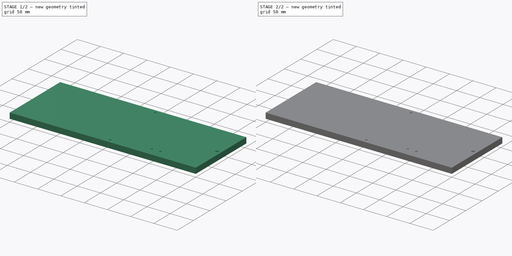
[diagram: build sequence overview — one tinted view per stage of 2, left to right]
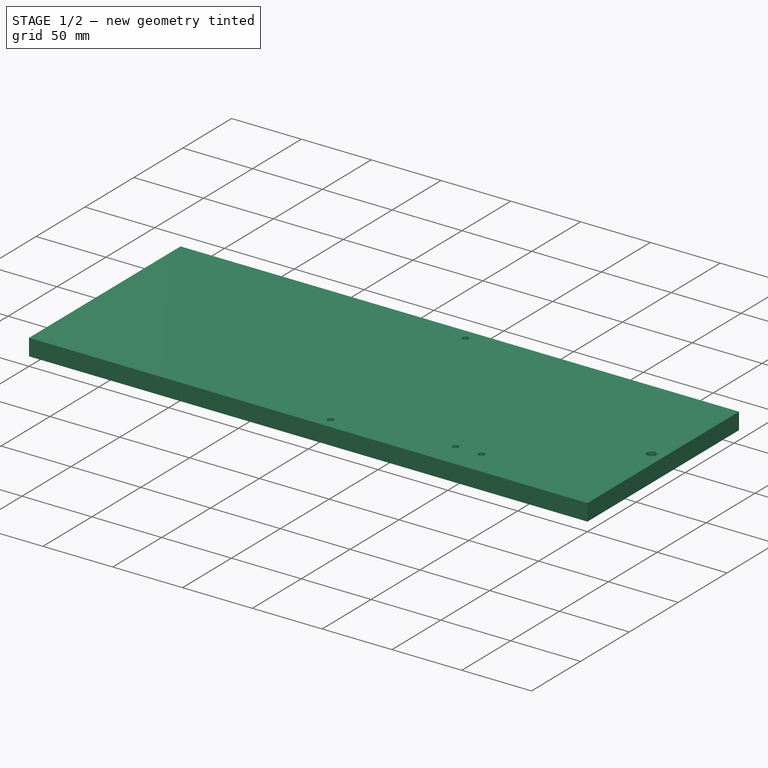
[diagram: stage 1 of 2 — iso view after this stage's code; geometry added in this stage tinted green]
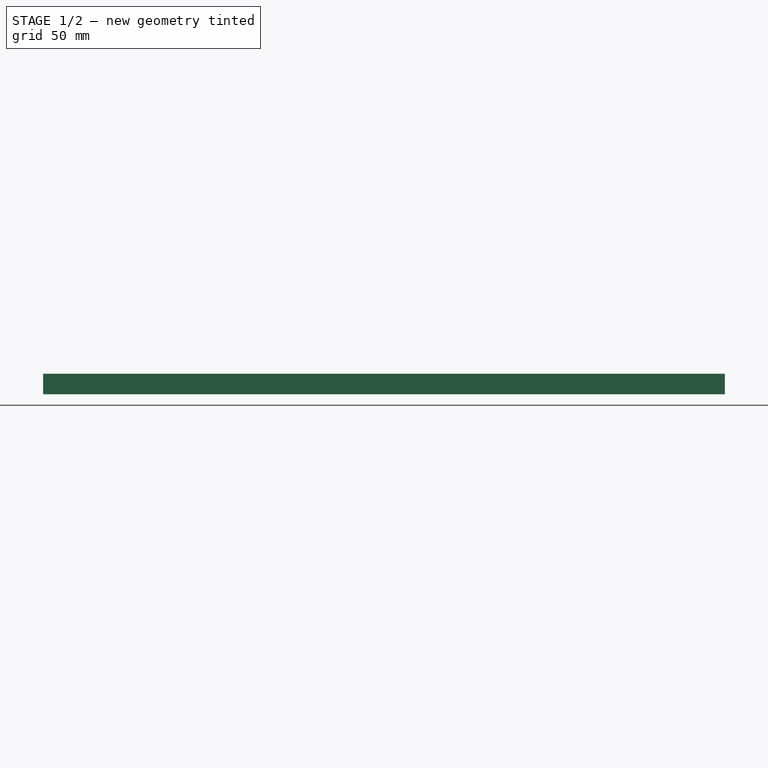
[diagram: stage 1 of 2 — front view after this stage's code; geometry added in this stage tinted green]
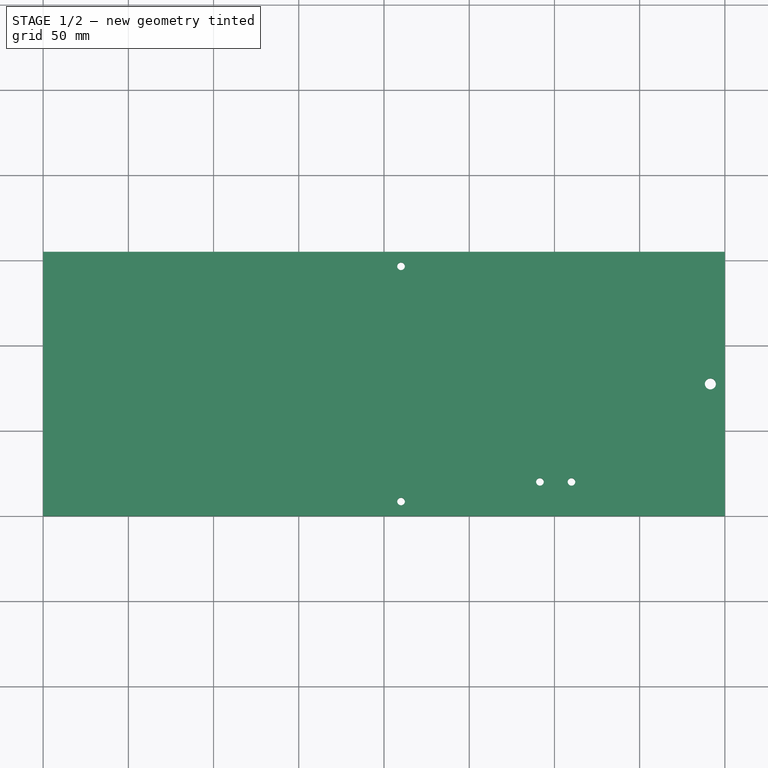
[diagram: stage 1 of 2 — top view after this stage's code; geometry added in this stage tinted green]
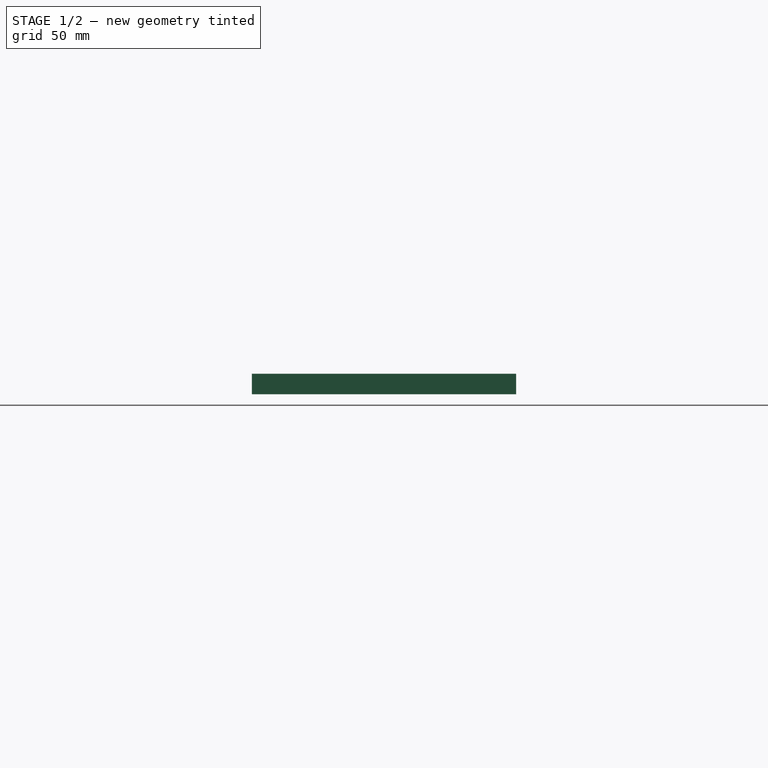
[diagram: stage 1 of 2 — right view after this stage's code; geometry added in this stage tinted green]
FCSTD DOCUMENT  (FreeCAD 1.0R38641 +468 (Git))
Label: BasePlateAFRS
License: All rights reserved
LicenseURL: https://en.wikipedia.org/wiki/All_rights_reserved
objects: Sketcher::SketchObject×3, PartDesign::Pocket×2, PartDesign::Pad×1, PartDesign::Body×1, Part::Box×1
note: 17 computed .brp shape members not serialized (recipe doc carries the construction recipe); baked Part::Feature solids carry a one-line shape summary decoded from their .brp

FEATURE [Sketcher::SketchObject] Sketch
  ArcFitTolerance = 1e-06
  AttachmentSupport = -> [XY_Plane]
  FullyConstrained = true
  MakeInternals = false
  MapMode = 5
  sketch-geometry (17):
    g0: LineSegment StartX=0 StartY=0 StartZ=0 EndX=400 EndY=0 EndZ=0
    g1: LineSegment StartX=400 StartY=0 StartZ=0 EndX=400 EndY=155 EndZ=0
    g2: LineSegment StartX=400 StartY=155 StartZ=0 EndX=0 EndY=155 EndZ=0
    g3: LineSegment StartX=0 StartY=155 StartZ=0 EndX=0 EndY=0 EndZ=0
    g4: Circle CenterX=190 CenterY=8.5 CenterZ=0 NormalX=0 NormalY=0 NormalZ=1 AngleXU=0 Radius=2.25
    g5: Circle CenterX=190 CenterY=146.5 CenterZ=0 NormalX=0 NormalY=0 NormalZ=1 AngleXU=0 Radius=2.25
    g6: Circle CenterX=210 CenterY=8.5 CenterZ=0 NormalX=0 NormalY=0 NormalZ=1 AngleXU=0 Radius=2.25
    g7: Circle CenterX=210 CenterY=146.5 CenterZ=0 NormalX=0 NormalY=0 NormalZ=1 AngleXU=0 Radius=2.25
    g8: Circle CenterX=391.5 CenterY=77.5 CenterZ=0 NormalX=0 NormalY=0 NormalZ=1 AngleXU=0 Radius=3.25
    g9: Circle CenterX=25 CenterY=37.5 CenterZ=0 NormalX=0 NormalY=0 NormalZ=1 AngleXU=0 Radius=2.25
    g10: Circle CenterX=25 CenterY=117.5 CenterZ=0 NormalX=0 NormalY=0 NormalZ=1 AngleXU=0 Radius=2.25
    g11: Circle CenterX=100 CenterY=22.5 CenterZ=0 NormalX=0 NormalY=0 NormalZ=1 AngleXU=0 Radius=2.25
    g12: Circle CenterX=100 CenterY=132.5 CenterZ=0 NormalX=0 NormalY=0 NormalZ=1 AngleXU=0 Radius=2.25
    g13: Circle CenterX=190 CenterY=60.5 CenterZ=0 NormalX=0 NormalY=0 NormalZ=1 AngleXU=0 Radius=2.25
    g14: Circle CenterX=190 CenterY=94.5 CenterZ=0 NormalX=0 NormalY=0 NormalZ=1 AngleXU=0 Radius=2.25
    g15: Circle CenterX=291.5 CenterY=20 CenterZ=0 NormalX=0 NormalY=0 NormalZ=1 AngleXU=0 Radius=2.25
    g16: Circle CenterX=310 CenterY=20 CenterZ=0 NormalX=0 NormalY=0 NormalZ=1 AngleXU=0 Radius=2.25
  constraints (50):
    c: Coincident(g0,g1)
    c: Coincident(g1,g2)
    c: Coincident(g2,g3)
    c: Coincident(g3,g0)
    c: Horizontal(g0)
    c: Horizontal(g2)
    c: Vertical(g1)
    c: Vertical(g3)
    c: Coincident(g0,g-1)
    c: DistanceX(g2,g2) = 400
    c: DistanceY(g1,g1) = 155
    c: Diameter(g4) = 4.5
    c: Diameter(g5) = 4.5
    c: DistanceY(g5,g1) = 8.5
    c: DistanceX(g0,g4) = 190
    c: DistanceY(g0,g4) = 8.5
    c: DistanceX(g5,g4) = 0
    c: Diameter(g6) = 4.5
    c: DistanceY(g6,g4) = 0
    c: DistanceX(g6,g0) = 190
    c: Diameter(g7) = 4.5
    c: DistanceY(g7,g5) = 0
    c: DistanceX(g6,g7) = 0
    c: Diameter(g8) = 6.5
    c: DistanceX(g8,g0) = 8.5
    c: DistanceY(g0,g8) = 77.5
    c: Diameter(g9) = 4.5
    c: DistanceY(g0,g9) = 37.5
    c: DistanceX(g0,g9) = 25
    c: Diameter(g10) = 4.5
    c: DistanceX(g2,g10) = 25
    c: DistanceY(g10,g2) = 37.5
    c: Diameter(g11) = 4.5
    c: DistanceY(g0,g11) = 22.5
    c: Diameter(g12) = 4.5
    c: DistanceX(g0,g11) = 100
    c: DistanceX(g2,g12) = 100
    c: DistanceY(g12,g2) = 22.5
    c: Diameter(g13) = 4.5
    c: Diameter(g14) = 4.5
    c: DistanceY(g0,g13) = 60.5
    c: DistanceY(g14,g2) = 60.5
    c: DistanceX(g0,g13) = 190
    c: DistanceX(g2,g14) = 190
    c: Diameter(g15) = 4.5
    c: DistanceX(g15,g8) = 100
    c: DistanceY(g0,g15) = 20
    c: Diameter(g16) = 4.5
    c: DistanceY(g0,g16) = 20
    c: DistanceX(g16,g0) = 90
FEATURE [PartDesign::Pad] Pad
  Direction = (0,0,1)
  Length = 12
  Length2 = 10
  Profile = -> Sketch
  ReferenceAxis = -> Sketch [N_Axis]
  Refine = true
  Suppressed = false
  Type = 0
FEATURE [PartDesign::Body] Body
  AllowCompound = false
  Group = -> [Sketch,Pad,Sketch001,Pocket,Sketch002,Pocket001]
  Origin = -> Origin
  Tip = -> Pocket001
FEATURE [Part::Box] Box  label="Cube"
  AttacherType = Attacher::AttachEngine3D
  Height = 12
  Length = 200
  Width = 155
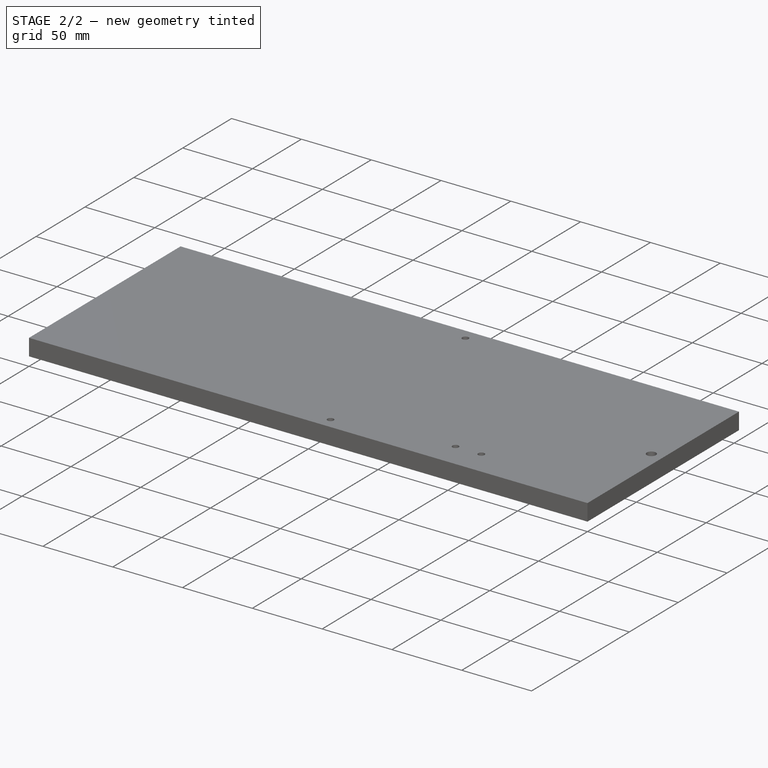
[diagram: stage 2 of 2 — iso view after this stage's code; geometry added in this stage tinted green]
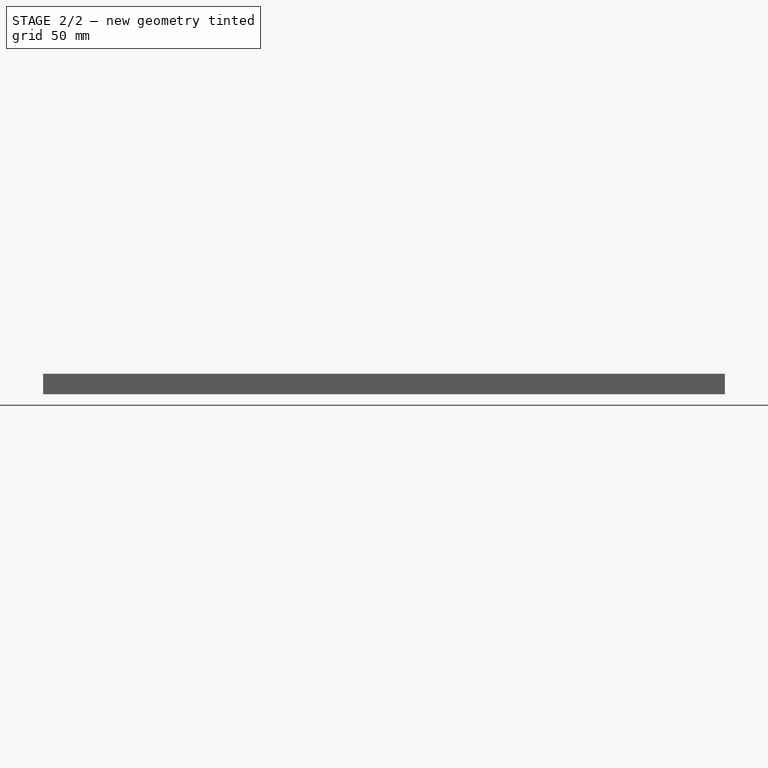
[diagram: stage 2 of 2 — front view after this stage's code; geometry added in this stage tinted green]
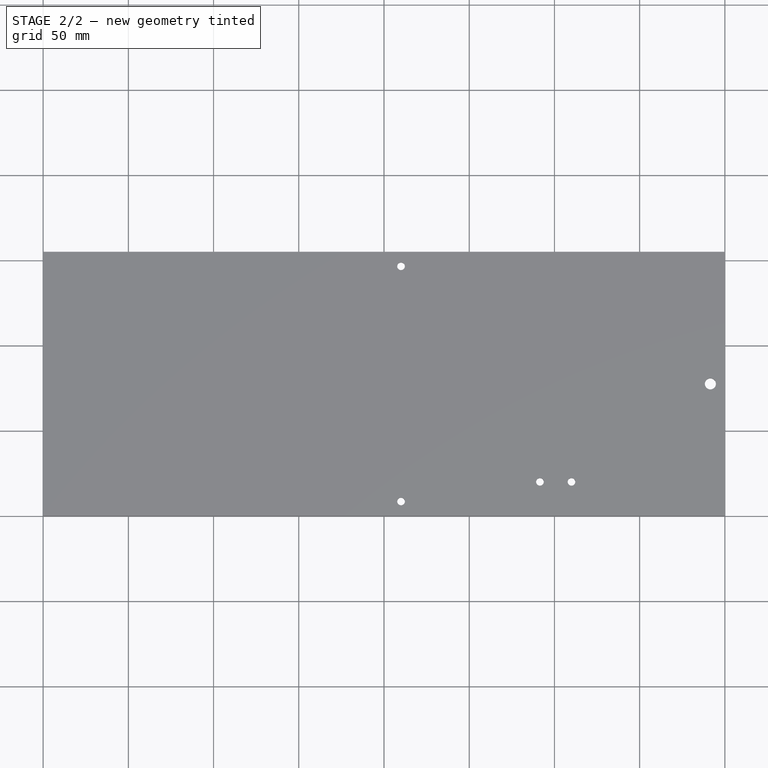
[diagram: stage 2 of 2 — top view after this stage's code; geometry added in this stage tinted green]
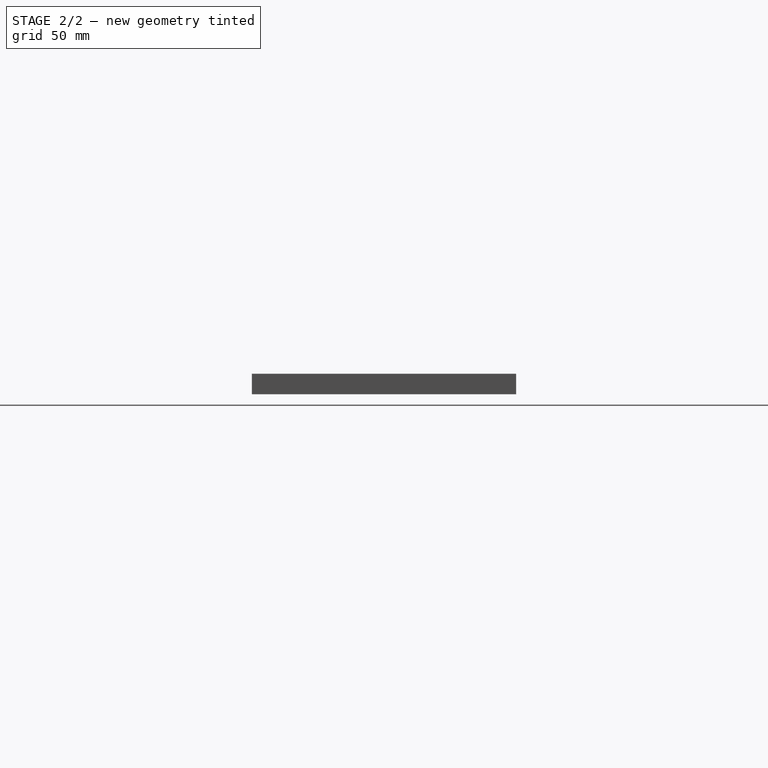
[diagram: stage 2 of 2 — right view after this stage's code; geometry added in this stage tinted green]
FEATURE [Sketcher::SketchObject] Sketch001
  ArcFitTolerance = 1e-06
  AttachmentSupport = -> [Pad]
  FullyConstrained = true
  MakeInternals = false
  MapMode = 5
  Placement = pos=(0,0,0) rot=(1,0,0;3.14159rad)
  sketch-geometry (84):
    g0: LineSegment StartX=29.0415 StartY=-37.5 StartZ=0 EndX=27.0207 EndY=-34 EndZ=0
    g1: LineSegment StartX=27.0207 StartY=-34 StartZ=0 EndX=22.9793 EndY=-34 EndZ=0
    g2: LineSegment StartX=22.9793 StartY=-34 StartZ=0 EndX=20.9585 EndY=-37.5 EndZ=0
    g3: LineSegment StartX=20.9585 StartY=-37.5 StartZ=0 EndX=22.9793 EndY=-41 EndZ=0
    g4: LineSegment StartX=22.9793 StartY=-41 StartZ=0 EndX=27.0207 EndY=-41 EndZ=0
    g5: LineSegment StartX=27.0207 StartY=-41 StartZ=0 EndX=29.0415 EndY=-37.5 EndZ=0
    g6: Circle [constr] CenterX=25 CenterY=-37.5 CenterZ=0 NormalX=0 NormalY=0 NormalZ=1 AngleXU=0 Radius=4.04145
    g7: LineSegment StartX=102.021 StartY=-26 StartZ=0 EndX=104.041 EndY=-22.5 EndZ=0
    g8: LineSegment StartX=104.041 StartY=-22.5 StartZ=0 EndX=102.021 EndY=-19 EndZ=0
    g9: LineSegment StartX=102.021 StartY=-19 StartZ=0 EndX=97.9793 EndY=-19 EndZ=0
    g10: LineSegment StartX=97.9793 StartY=-19 StartZ=0 EndX=95.9585 EndY=-22.5 EndZ=0
    g11: LineSegment StartX=95.9585 StartY=-22.5 StartZ=0 EndX=97.9793 EndY=-26 EndZ=0
    g12: LineSegment StartX=97.9793 StartY=-26 StartZ=0 EndX=102.021 EndY=-26 EndZ=0
    g13: Circle [constr] CenterX=100 CenterY=-22.5 CenterZ=0 NormalX=0 NormalY=0 NormalZ=1 AngleXU=0 Radius=4.04145
    g14: LineSegment StartX=194.041 StartY=-60.5 StartZ=0 EndX=192.021 EndY=-57 EndZ=0
    g15: LineSegment StartX=192.021 StartY=-57 StartZ=0 EndX=187.979 EndY=-57 EndZ=0
    g16: LineSegment StartX=187.979 StartY=-57 StartZ=0 EndX=185.959 EndY=-60.5 EndZ=0
    g17: LineSegment StartX=185.959 StartY=-60.5 StartZ=0 EndX=187.979 EndY=-64 EndZ=0
    g18: LineSegment StartX=187.979 StartY=-64 StartZ=0 EndX=192.021 EndY=-64 EndZ=0
    g19: LineSegment StartX=192.021 StartY=-64 StartZ=0 EndX=194.041 EndY=-60.5 EndZ=0
    g20: Circle [constr] CenterX=190 CenterY=-60.5 CenterZ=0 NormalX=0 NormalY=0 NormalZ=1 AngleXU=0 Radius=4.04145
    g21: LineSegment StartX=27.0207 StartY=-114 StartZ=0 EndX=22.9793 EndY=-114 EndZ=0
    g22: LineSegment StartX=22.9793 StartY=-114 StartZ=0 EndX=20.9585 EndY=-117.5 EndZ=0
    g23: LineSegment StartX=20.9585 StartY=-117.5 StartZ=0 EndX=22.9793 EndY=-121 EndZ=0
    g24: LineSegment StartX=22.9793 StartY=-121 StartZ=0 EndX=27.0207 EndY=-121 EndZ=0
    g25: LineSegment StartX=27.0207 StartY=-121 StartZ=0 EndX=29.0415 EndY=-117.5 EndZ=0
    g26: LineSegment StartX=29.0415 StartY=-117.5 StartZ=0 EndX=27.0207 EndY=-114 EndZ=0
    g27: Circle [constr] CenterX=25 CenterY=-117.5 CenterZ=0 NormalX=0 NormalY=0 NormalZ=1 AngleXU=0 Radius=4.04145
    g28: LineSegment StartX=192.021 StartY=-5 StartZ=0 EndX=187.979 EndY=-5 EndZ=0
    g29: LineSegment StartX=187.979 StartY=-5 StartZ=0 EndX=185.959 EndY=-8.5 EndZ=0
    g30: LineSegment StartX=185.959 StartY=-8.5 StartZ=0 EndX=187.979 EndY=-12 EndZ=0
    g31: LineSegment StartX=187.979 StartY=-12 StartZ=0 EndX=192.021 EndY=-12 EndZ=0
    g32: LineSegment StartX=192.021 StartY=-12 StartZ=0 EndX=194.041 EndY=-8.5 EndZ=0
    g33: LineSegment StartX=194.041 StartY=-8.5 StartZ=0 EndX=192.021 EndY=-5 EndZ=0
    g34: Circle [constr] CenterX=190 CenterY=-8.5 CenterZ=0 NormalX=0 NormalY=0 NormalZ=1 AngleXU=0 Radius=4.04145
    g35: LineSegment StartX=102.021 StartY=-129 StartZ=0 EndX=97.9793 EndY=-129 EndZ=0
    g36: LineSegment StartX=97.9793 StartY=-129 StartZ=0 EndX=95.9585 EndY=-132.5 EndZ=0
    g37: LineSegment StartX=95.9585 StartY=-132.5 StartZ=0 EndX=97.9793 EndY=-136 EndZ=0
    g38: LineSegment StartX=97.9793 StartY=-136 StartZ=0 EndX=102.021 EndY=-136 EndZ=0
    g39: LineSegment StartX=102.021 StartY=-136 StartZ=0 EndX=104.041 EndY=-132.5 EndZ=0
    g40: LineSegment StartX=104.041 StartY=-132.5 StartZ=0 EndX=102.021 EndY=-129 EndZ=0
    g41: Circle [constr] CenterX=100 CenterY=-132.5 CenterZ=0 NormalX=0 NormalY=0 NormalZ=1 AngleXU=0 Radius=4.04145
    g42: LineSegment StartX=192.021 StartY=-91 StartZ=0 EndX=187.979 EndY=-91 EndZ=0
    g43: LineSegment StartX=187.979 StartY=-91 StartZ=0 EndX=185.959 EndY=-94.5 EndZ=0
    g44: LineSegment StartX=185.959 StartY=-94.5 StartZ=0 EndX=187.979 EndY=-98 EndZ=0
    g45: LineSegment StartX=187.979 StartY=-98 StartZ=0 EndX=192.021 EndY=-98 EndZ=0
    g46: LineSegment StartX=192.021 StartY=-98 StartZ=0 EndX=194.041 EndY=-94.5 EndZ=0
    g47: LineSegment StartX=194.041 StartY=-94.5 StartZ=0 EndX=192.021 EndY=-91 EndZ=0
    g48: Circle [constr] CenterX=190 CenterY=-94.5 CenterZ=0 NormalX=0 NormalY=0 NormalZ=1 AngleXU=0 Radius=4.04145
    g49: LineSegment StartX=192.021 StartY=-143 StartZ=0 EndX=187.979 EndY=-143 EndZ=0
    g50: LineSegment StartX=187.979 StartY=-143 StartZ=0 EndX=185.959 EndY=-146.5 EndZ=0
    g51: LineSegment StartX=185.959 StartY=-146.5 StartZ=0 EndX=187.979 EndY=-150 EndZ=0
    g52: LineSegment StartX=187.979 StartY=-150 StartZ=0 EndX=192.021 EndY=-150 EndZ=0
    g53: LineSegment StartX=192.021 StartY=-150 StartZ=0 EndX=194.041 EndY=-146.5 EndZ=0
    g54: LineSegment StartX=194.041 StartY=-146.5 StartZ=0 EndX=192.021 EndY=-143 EndZ=0
    g55: Circle [constr] CenterX=190 CenterY=-146.5 CenterZ=0 NormalX=0 NormalY=0 NormalZ=1 AngleXU=0 Radius=4.04145
    g56: LineSegment StartX=212.021 StartY=-12 StartZ=0 EndX=214.041 EndY=-8.5 EndZ=0
    g57: LineSegment StartX=214.041 StartY=-8.5 StartZ=0 EndX=212.021 EndY=-5 EndZ=0
    g58: LineSegment StartX=212.021 StartY=-5 StartZ=0 EndX=207.979 EndY=-5 EndZ=0
    g59: LineSegment StartX=207.979 StartY=-5 StartZ=0 EndX=205.959 EndY=-8.5 EndZ=0
    g60: LineSegment StartX=205.959 StartY=-8.5 StartZ=0 EndX=207.979 EndY=-12 EndZ=0
    g61: LineSegment StartX=207.979 StartY=-12 StartZ=0 EndX=212.021 EndY=-12 EndZ=0
    g62: Circle [constr] CenterX=210 CenterY=-8.5 CenterZ=0 NormalX=0 NormalY=0 NormalZ=1 AngleXU=0 Radius=4.04145
    g63: LineSegment StartX=212.021 StartY=-143 StartZ=0 EndX=207.979 EndY=-143 EndZ=0
    g64: LineSegment StartX=207.979 StartY=-143 StartZ=0 EndX=205.959 EndY=-146.5 EndZ=0
    g65: LineSegment StartX=205.959 StartY=-146.5 StartZ=0 EndX=207.979 EndY=-150 EndZ=0
    g66: LineSegment StartX=207.979 StartY=-150 StartZ=0 EndX=212.021 EndY=-150 EndZ=0
    g67: LineSegment StartX=212.021 StartY=-150 StartZ=0 EndX=214.041 EndY=-146.5 EndZ=0
    g68: LineSegment StartX=214.041 StartY=-146.5 StartZ=0 EndX=212.021 EndY=-143 EndZ=0
    g69: Circle [constr] CenterX=210 CenterY=-146.5 CenterZ=0 NormalX=0 NormalY=0 NormalZ=1 AngleXU=0 Radius=4.04145
    g70: LineSegment StartX=295.541 StartY=-20 StartZ=0 EndX=293.521 EndY=-16.5 EndZ=0
    g71: LineSegment StartX=293.521 StartY=-16.5 StartZ=0 EndX=289.479 EndY=-16.5 EndZ=0
    g72: LineSegment StartX=289.479 StartY=-16.5 StartZ=0 EndX=287.459 EndY=-20 EndZ=0
    g73: LineSegment StartX=287.459 StartY=-20 StartZ=0 EndX=289.479 EndY=-23.5 EndZ=0
    g74: LineSegment StartX=289.479 StartY=-23.5 StartZ=0 EndX=293.521 EndY=-23.5 EndZ=0
    g75: LineSegment StartX=293.521 StartY=-23.5 StartZ=0 EndX=295.541 EndY=-20 EndZ=0
    g76: Circle [constr] CenterX=291.5 CenterY=-20 CenterZ=0 NormalX=0 NormalY=0 NormalZ=1 AngleXU=0 Radius=4.04145
    g77: LineSegment StartX=312.021 StartY=-16.5 StartZ=0 EndX=307.979 EndY=-16.5 EndZ=0
    g78: LineSegment StartX=307.979 StartY=-16.5 StartZ=0 EndX=305.959 EndY=-20 EndZ=0
    g79: LineSegment StartX=305.959 StartY=-20 StartZ=0 EndX=307.979 EndY=-23.5 EndZ=0
    g80: LineSegment StartX=307.979 StartY=-23.5 StartZ=0 EndX=312.021 EndY=-23.5 EndZ=0
    g81: LineSegment StartX=312.021 StartY=-23.5 StartZ=0 EndX=314.041 EndY=-20 EndZ=0
    g82: LineSegment StartX=314.041 StartY=-20 StartZ=0 EndX=312.021 EndY=-16.5 EndZ=0
    g83: Circle [constr] CenterX=310 CenterY=-20 CenterZ=0 NormalX=0 NormalY=0 NormalZ=1 AngleXU=0 Radius=4.04145
  constraints (204):
    c: Coincident(g0,g1)
    c: Coincident(g1,g2)
    c: Coincident(g2,g3)
    c: Coincident(g3,g4)
    c: Coincident(g4,g5)
    c: Coincident(g5,g0)
    c: Equal(g0, g1-g5) x5
    c: PointOnObject(g0,g6)
    c: PointOnObject(g1,g6)
    c: PointOnObject(g2,g6)
    c: PointOnObject(g3,g6)
    c: PointOnObject(g4,g6)
    c: PointOnObject(g5,g6)
    c: Parallel(g-1,g1)
    c: DistanceY(g6,g-1) = 37.5
    c: DistanceX(g-1,g6) = 25
    c: Coincident(g7,g8)
    c: Coincident(g8,g9)
    c: Coincident(g9,g10)
    c: Coincident(g10,g11)
    c: Coincident(g11,g12)
    c: Coincident(g12,g7)
    c: Equal(g7, g8-g12) x5
    c: PointOnObject(g7,g13)
    c: PointOnObject(g8,g13)
    c: PointOnObject(g9,g13)
    c: PointOnObject(g10,g13)
    c: PointOnObject(g11,g13)
    c: PointOnObject(g12,g13)
    c: Parallel(g9,g-1)
    c: DistanceY(g4,g0) = 7
    c: DistanceY(g7,g8) = 7
    c: DistanceY(g13,g-1) = 22.5
    c: DistanceX(g-1,g13) = 100
    c: Coincident(g14,g15)
    c: Coincident(g15,g16)
    c: Coincident(g16,g17)
    c: Coincident(g17,g18)
    c: Coincident(g18,g19)
    c: Coincident(g19,g14)
    c: Equal(g14, g15-g19) x5
    c: PointOnObject(g14,g20)
    c: PointOnObject(g15,g20)
    c: PointOnObject(g16,g20)
    c: PointOnObject(g17,g20)
    c: PointOnObject(g18,g20)
    c: PointOnObject(g19,g20)
    c: Parallel(g15,g-1)
    c: DistanceY(g18,g14) = 7
    c: DistanceY(g20,g-1) = 60.5
    c: DistanceX(g-1,g20) = 190
    c: Coincident(g21,g22)
    c: Coincident(g22,g23)
    c: Coincident(g23,g24)
    c: Coincident(g24,g25)
    c: Coincident(g25,g26)
    c: Coincident(g26,g21)
    c: Equal(g21, g22-g26) x5
    c: PointOnObject(g21,g27)
    c: PointOnObject(g22,g27)
    c: PointOnObject(g23,g27)
    c: PointOnObject(g24,g27)
    c: PointOnObject(g25,g27)
    c: PointOnObject(g26,g27)
    c: Parallel(g21,g-1)
    c: DistanceX(g-1,g27) = 25
    c: DistanceY(g24,g21) = 7
    c: Coincident(g28,g29)
    c: Coincident(g29,g30)
    c: Coincident(g30,g31)
    c: Coincident(g31,g32)
    c: Coincident(g32,g33)
    c: Coincident(g33,g28)
    c: Equal(g28, g29-g33) x5
    c: PointOnObject(g28,g34)
    c: PointOnObject(g29,g34)
    c: PointOnObject(g30,g34)
    c: PointOnObject(g31,g34)
    c: PointOnObject(g32,g34)
    c: PointOnObject(g33,g34)
    c: Parallel(g28,g-1)
    c: DistanceY(g31,g28) = 7
    c: DistanceY(g34,g-1) = 8.5
    c: DistanceX(g-1,g34) = 190
    c: Coincident(g35,g36)
    c: Coincident(g36,g37)
    c: Coincident(g37,g38)
    c: Coincident(g38,g39)
    c: Coincident(g39,g40)
    c: Coincident(g40,g35)
    c: Equal(g35, g36-g40) x5
    c: PointOnObject(g35,g41)
    c: PointOnObject(g36,g41)
    c: PointOnObject(g37,g41)
    c: PointOnObject(g38,g41)
    c: PointOnObject(g39,g41)
    c: PointOnObject(g40,g41)
    c: Parallel(g35,g-1)
    c: DistanceY(g38,g35) = 7
    c: DistanceX(g-1,g41) = 100
    c: Coincident(g42,g43)
    c: Coincident(g43,g44)
    c: Coincident(g44,g45)
    c: Coincident(g45,g46)
    c: Coincident(g46,g47)
    c: Coincident(g47,g42)
    c: Equal(g42, g43-g47) x5
    c: PointOnObject(g42,g48)
    c: PointOnObject(g43,g48)
    c: PointOnObject(g44,g48)
    c: PointOnObject(g45,g48)
    c: PointOnObject(g46,g48)
    c: PointOnObject(g47,g48)
    c: Parallel(g42,g-1)
    c: DistanceY(g45,g42) = 7
    c: DistanceX(g-1,g48) = 190
    c: Coincident(g49,g50)
    c: Coincident(g50,g51)
    c: Coincident(g51,g52)
    c: Coincident(g52,g53)
    c: Coincident(g53,g54)
    c: Coincident(g54,g49)
    c: Equal(g49, g50-g54) x5
    c: PointOnObject(g49,g55)
    c: PointOnObject(g50,g55)
    c: PointOnObject(g51,g55)
    c: PointOnObject(g52,g55)
    c: PointOnObject(g53,g55)
    c: PointOnObject(g54,g55)
    c: Parallel(g49,g-1)
    c: DistanceY(g52,g49) = 7
    c: DistanceX(g-1,g55) = 190
    c: DistanceY(g27,g-1) = 117.5
    c: DistanceY(g41,g-1) = 132.5
    c: DistanceY(g48,g-1) = 94.5
    c: DistanceY(g55,g-1) = 146.5
    c: Coincident(g56,g57)
    c: Coincident(g57,g58)
    c: Coincident(g58,g59)
    c: Coincident(g59,g60)
    c: Coincident(g60,g61)
    c: Coincident(g61,g56)
    c: Equal(g56, g57-g61) x5
    c: PointOnObject(g56,g62)
    c: PointOnObject(g57,g62)
    c: PointOnObject(g58,g62)
    c: PointOnObject(g59,g62)
    c: PointOnObject(g60,g62)
    c: PointOnObject(g61,g62)
    c: Parallel(g-1,g58)
    c: DistanceX(g34,g62) = 20
    c: DistanceY(g62,g-1) = 8.5
    c: DistanceY(g56,g57) = 7
    c: Coincident(g63,g64)
    c: Coincident(g64,g65)
    c: Coincident(g65,g66)
    c: Coincident(g66,g67)
    c: Coincident(g67,g68)
    c: Coincident(g68,g63)
    c: Equal(g63, g64-g68) x5
    c: PointOnObject(g63,g69)
    c: PointOnObject(g64,g69)
    c: PointOnObject(g65,g69)
    c: PointOnObject(g66,g69)
    c: PointOnObject(g67,g69)
    c: PointOnObject(g68,g69)
    c: Parallel(g63,g-1)
    c: DistanceY(g66,g63) = 7
    c: DistanceX(g55,g69) = 20
    c: DistanceY(g69,g-1) = 146.5
    c: Coincident(g70,g71)
    c: Coincident(g71,g72)
    c: Coincident(g72,g73)
    c: Coincident(g73,g74)
    c: Coincident(g74,g75)
    c: Coincident(g75,g70)
    c: Equal(g70, g71-g75) x5
    c: PointOnObject(g70,g76)
    c: PointOnObject(g71,g76)
    c: PointOnObject(g72,g76)
    c: PointOnObject(g73,g76)
    c: PointOnObject(g74,g76)
    c: PointOnObject(g75,g76)
    c: Parallel(g71,g-1)
    c: DistanceY(g74,g70) = 7
    c: DistanceX(g-1,g76) = 291.5
    c: DistanceY(g76,g-1) = 20
    c: Coincident(g77,g78)
    c: Coincident(g78,g79)
    c: Coincident(g79,g80)
    c: Coincident(g80,g81)
    c: Coincident(g81,g82)
    c: Coincident(g82,g77)
    c: Equal(g77, g78-g82) x5
    c: PointOnObject(g77,g83)
    c: PointOnObject(g78,g83)
    c: PointOnObject(g79,g83)
    c: PointOnObject(g80,g83)
    c: PointOnObject(g81,g83)
    c: PointOnObject(g82,g83)
    c: Parallel(g77,g-1)
    c: DistanceY(g80,g77) = 7
    c: DistanceX(g-1,g83) = 310
    c: DistanceY(g83,g-1) = 20
FEATURE [PartDesign::Pocket] Pocket
  BaseFeature = -> Pad
  Direction = (0,0,1)
  Length = 3.5
  Length2 = 5
  Profile = -> Sketch001
  ReferenceAxis = -> Sketch001 [N_Axis]
  Refine = true
  Suppressed = false
  Type = 0
FEATURE [Sketcher::SketchObject] Sketch002
  ArcFitTolerance = 1e-06
  AttachmentSupport = -> [Pocket]
  FullyConstrained = true
  MakeInternals = false
  MapMode = 5
  Placement = pos=(0,0,0) rot=(1,0,0;3.14159rad)
  sketch-geometry (1):
    g0: Circle CenterX=391.5 CenterY=-77.5 CenterZ=0 NormalX=0 NormalY=0 NormalZ=1 AngleXU=0 Radius=5.25
  constraints (3):
    c: Diameter(g0) = 10.5
    c: DistanceY(g0,g-1) = 77.5
    c: DistanceX(g-1,g0) = 391.5
FEATURE [PartDesign::Pocket] Pocket001
  BaseFeature = -> Pocket
  Direction = (0,0,1)
  Length = 4
  Length2 = 5
  Profile = -> Sketch002
  ReferenceAxis = -> Sketch002 [N_Axis]
  Refine = true
  Suppressed = false
  Type = 0
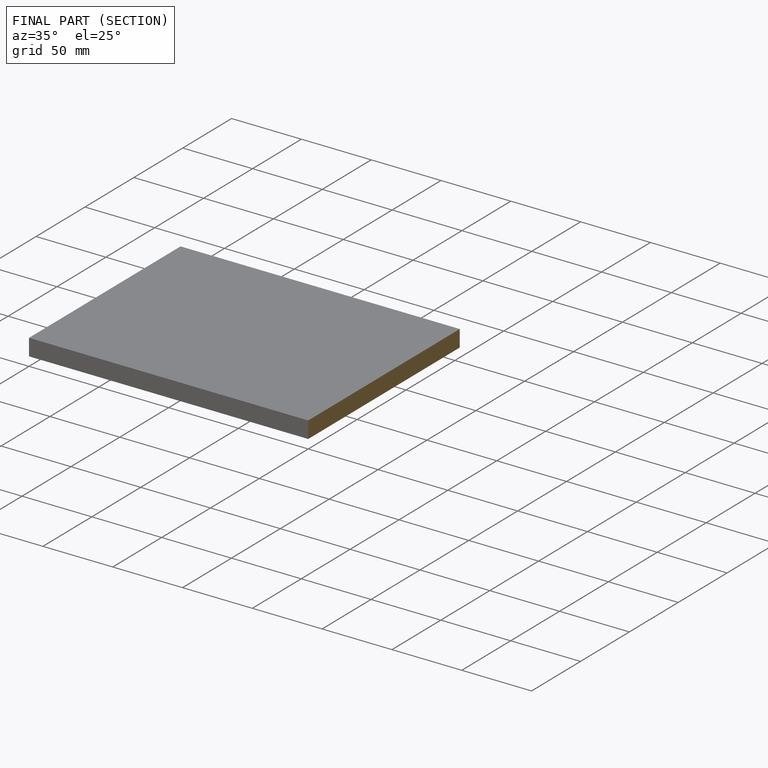
[diagram: finished part — half-section view (interior)]
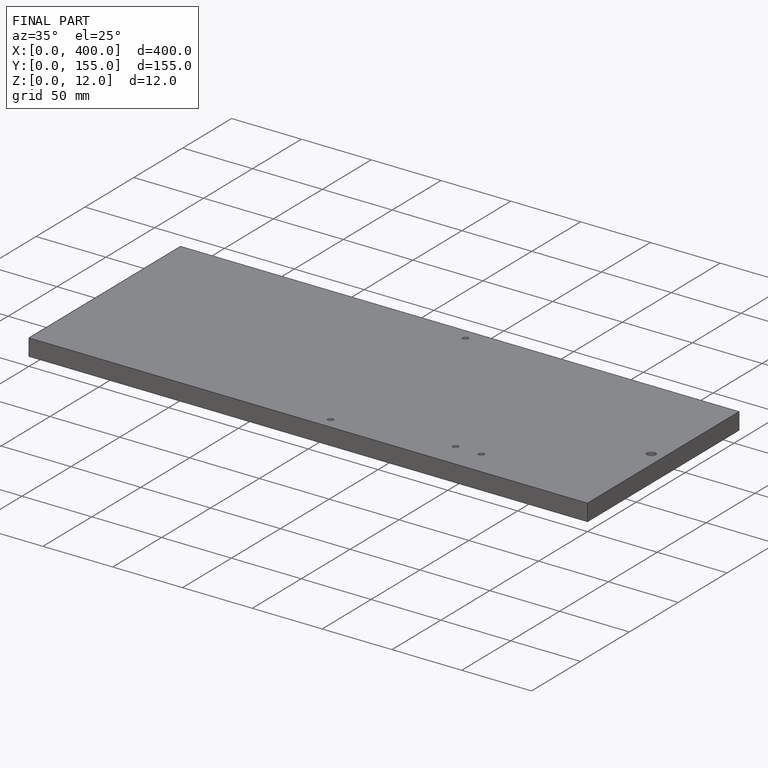
[diagram: finished part — iso view with bounding-box wireframe]
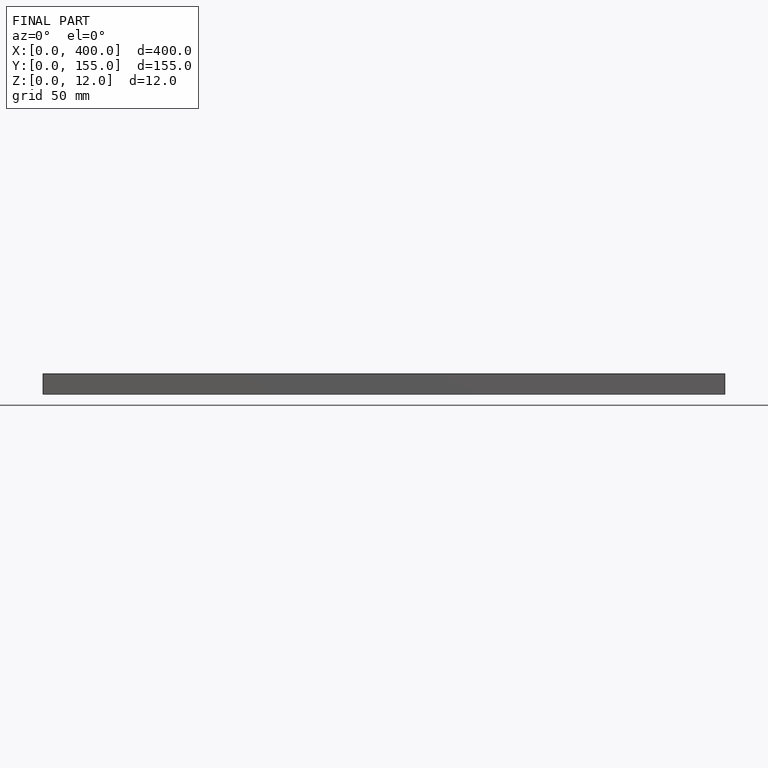
[diagram: finished part — front view with bounding-box wireframe]
